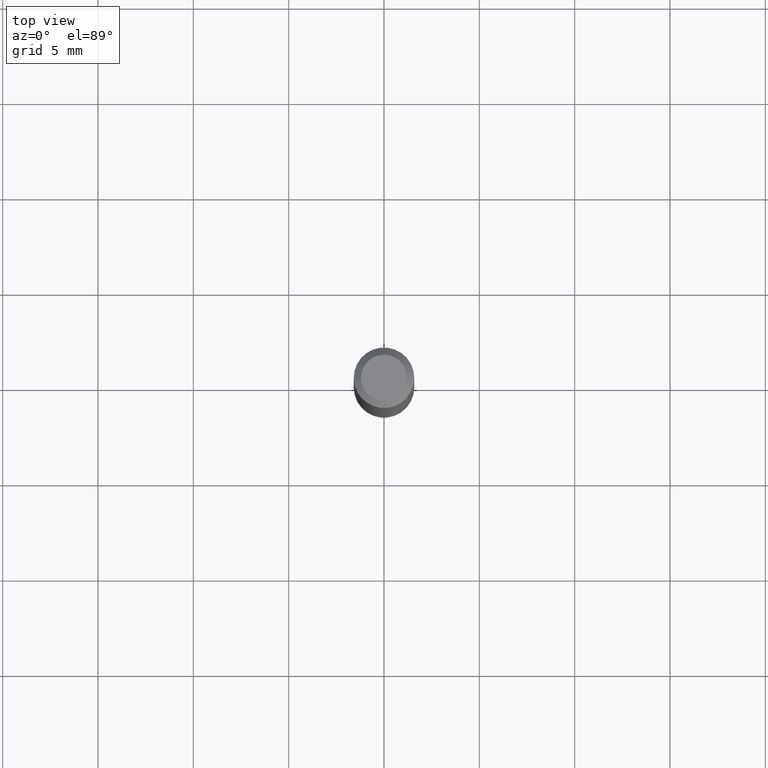
[diagram: clean part render]
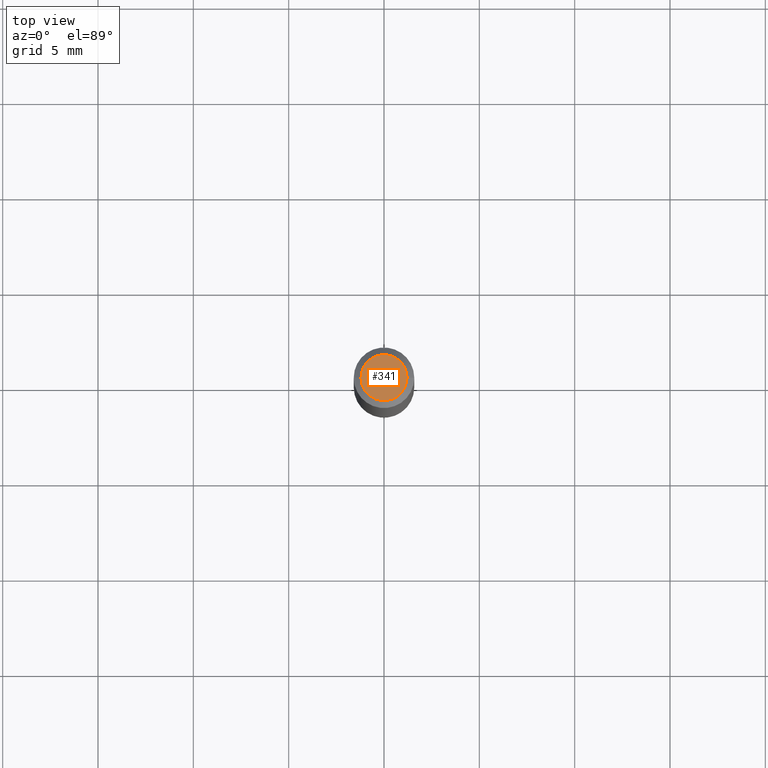
[diagram: same view with one face highlighted and labeled with its STEP entity id]
A machine part, top view. The second image highlights one B-rep face of the part: STEP entity #341.
In plain terms, the highlighted planar face has unit normal (0, -0, -1).
Its self-contained STEP definition (entity closure, byte-faithful):
#12 = EDGE_CURVE ( 'NONE', #27, #245, #356, .T. ) ;
#22 = ORIENTED_EDGE ( 'NONE', *, *, #125, .T. ) ;
#27 = VERTEX_POINT ( 'NONE', #278 ) ;
#58 = DIRECTION ( 'NONE',  ( 2.438088387897960049E-29, -3.491481338843145188E-15, -1.000000000000000000 ) ) ;
#59 = CIRCLE ( 'NONE', #87, 0.04749999999999999362 ) ;
#87 = AXIS2_PLACEMENT_3D ( 'NONE', #454, #201, #122 ) ;
#109 = AXIS2_PLACEMENT_3D ( 'NONE', #198, #58, #203 ) ;
#122 = DIRECTION ( 'NONE',  ( 1.000000000000000000, -6.982962677686267499E-15, 4.852736867747366768E-29 ) ) ;
#125 = EDGE_CURVE ( 'NONE', #245, #27, #59, .T. ) ;
#135 = ORIENTED_EDGE ( 'NONE', *, *, #12, .T. ) ;
#194 = DIRECTION ( 'NONE',  ( 1.000000000000000000, -6.982962677686267499E-15, 4.852736867747366768E-29 ) ) ;
#198 = CARTESIAN_POINT ( 'NONE',  ( 3.316907271900976096E-16, 0.04749999999999999362, -4.000479145938377490E-16 ) ) ;
#201 = DIRECTION ( 'NONE',  ( -2.445468806185136597E-29, 3.491481338843145583E-15, 1.000000000000000000 ) ) ;
#203 = DIRECTION ( 'NONE',  ( -1.000000000000000000, 6.982962677686265922E-15, -4.876176775795935793E-29 ) ) ;
#234 = PLANE ( 'NONE',  #109 ) ;
#245 = VERTEX_POINT ( 'NONE', #334 ) ;
#278 = CARTESIAN_POINT ( 'NONE',  ( 0.04749999999999999362, -4.035134999187586019E-16, -4.684051019975741414E-16 ) ) ;
#321 = DIRECTION ( 'NONE',  ( -2.445468806185136597E-29, 3.491481338843145583E-15, 1.000000000000000000 ) ) ;
#334 = CARTESIAN_POINT ( 'NONE',  ( -0.04749999999999999362, 3.578768372314202617E-16, -4.684051019975790718E-16 ) ) ;
#341 = ADVANCED_FACE ( 'NONE', ( #371 ), #234, .F. ) ;
#356 = CIRCLE ( 'NONE', #361, 0.04749999999999999362 ) ;
#361 = AXIS2_PLACEMENT_3D ( 'NONE', #364, #321, #194 ) ;
#364 = CARTESIAN_POINT ( 'NONE',  ( 1.145470065593040868E-44, -1.635427672643458845E-30, -4.684051019975766066E-16 ) ) ;
#371 = FACE_OUTER_BOUND ( 'NONE', #434, .T. ) ;
#434 = EDGE_LOOP ( 'NONE', ( #22, #135 ) ) ;
#454 = CARTESIAN_POINT ( 'NONE',  ( 1.145470065593040868E-44, -1.635427672643458845E-30, -4.684051019975766066E-16 ) ) ;